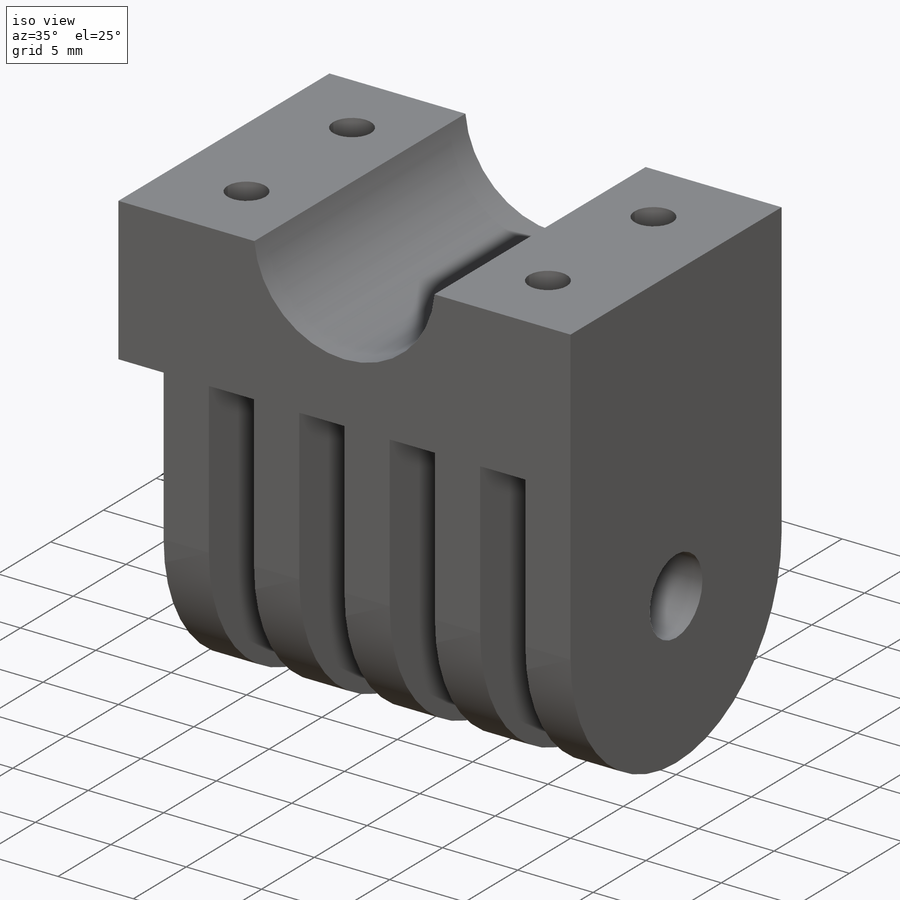
[diagram: iso view]
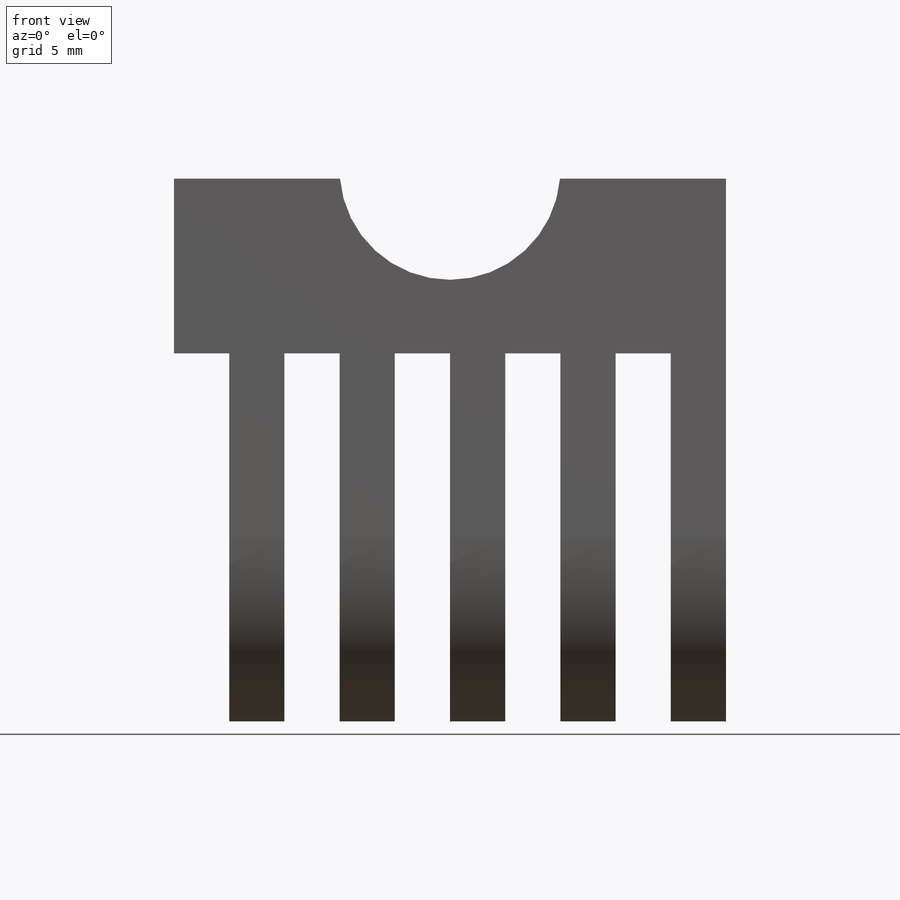
[diagram: front view]
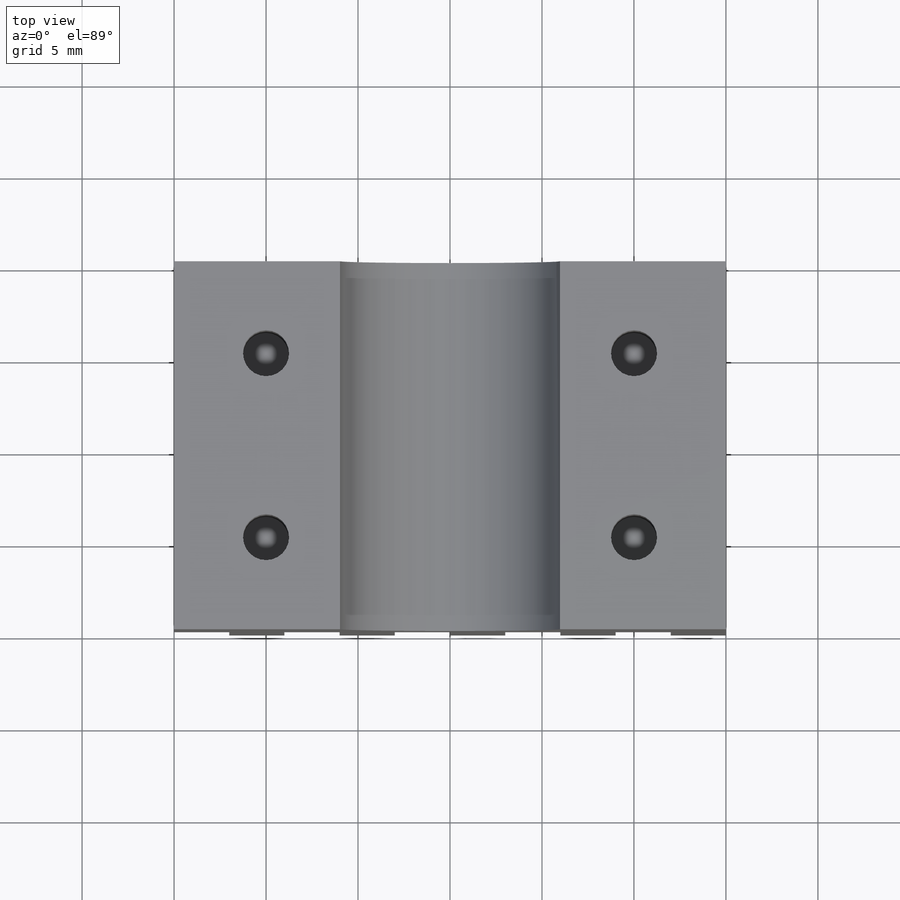
[diagram: top view]
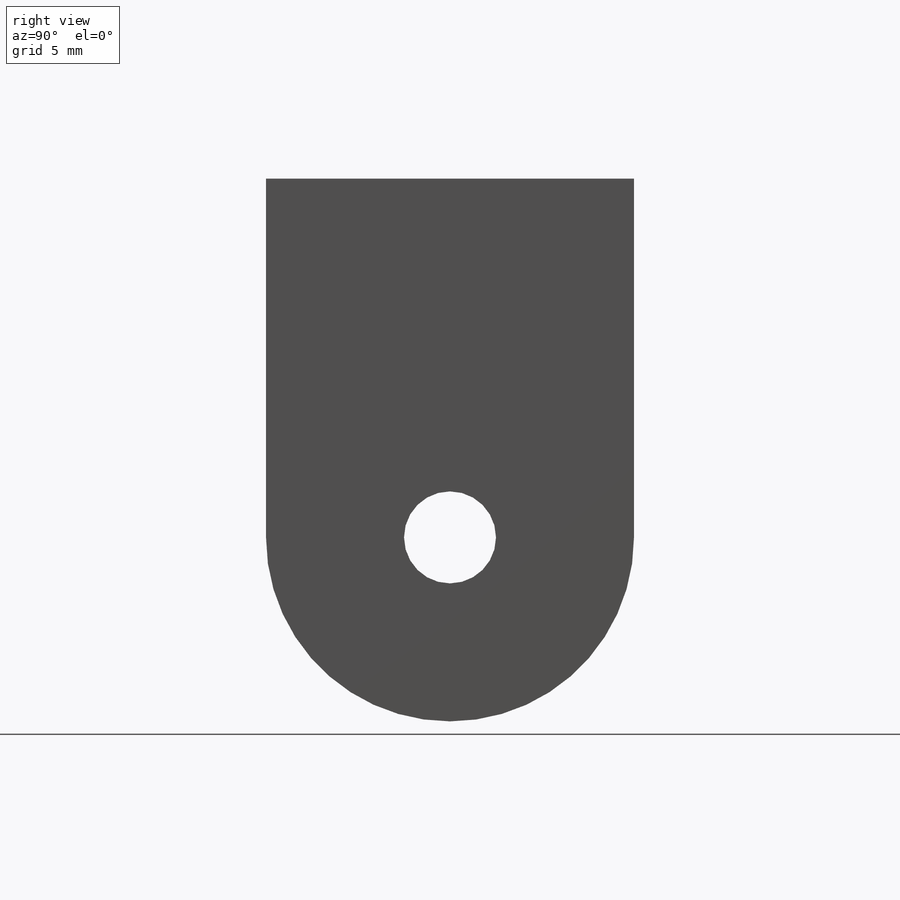
[diagram: right view]
SOLIDWORKS PART (.sldprt)
format: sldprt  version: not decoded by parser v0  size: 253,440 bytes
history: native  units: mm
features: plane x3, sketch x3, cut_extrude x2, material x1, extrude x1, fillet x1 (+8 scaffold rows collapsed)
feature tree (19):
  scaffold x8  (default folders/planes/origin — collapsed)
  material  "Matériau <non spécifié>"
  plane  "Plan de face"
  plane  "Plan de dessus"
  plane  "Plan de droite"
  sketch  "Esquisse1"  dims[c1.D6=6.0mm c1.D1=0.5mm c1.D2=9.5mm c1.D3=29.5mm c1.D4=30.0mm c1.D5=15.0mm c2.D6=~14.542289mm c2.D1=0.5mm c2.D7=3.0mm c2.D8=3.0mm c2.D9=3.0mm c2.D10=3.0mm c2.D11=3.0mm c2.D12=3.0mm c2.D13=3.0mm c2.D14=3.0mm c2.D15=3.0mm c2.D16=20.0mm c2.D17=20.0mm c2.D18=20.0mm c2.D19=20.0mm c2.D20=20.0mm c2.D21=20.0mm c2.D22=20.0mm c2.D23=20.0mm c2.D24=10.0mm]
  extrude  "Boss.-Extru.1"  Depth=20mm
  sketch  "Esquisse2"  dims[D1=2.5mm D2=2.5mm D3=2.5mm D4=2.5mm D5=5.0mm D6=5.0mm D7=5.0mm D8=5.0mm D9=5.0mm D10=5.0mm D11=5.0mm D12=5.0mm]
  cut_extrude  "Enlèv. mat.-Extru.1"  Depth=8mm
  fillet  "Congé1"  Radius=10mm
  sketch  "Esquisse3"  dims[D1=5.0mm D2=0.0mm D3=10.0mm]
  cut_extrude  "Enlèv. mat.-Extru.2"  Depth=30mm
decode coverage: 7 of 7 modeling features carry decoded parameters
note: ~ marks probable driven/reference dimensions
note: suppression state not decoded; provenance and decode notes live in map.json
